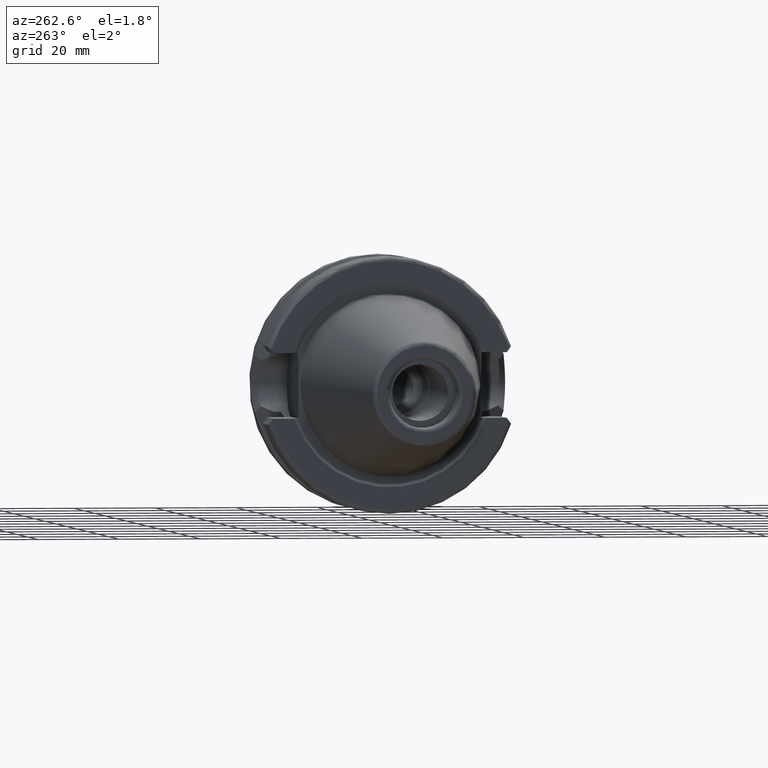
[diagram: clean part render]
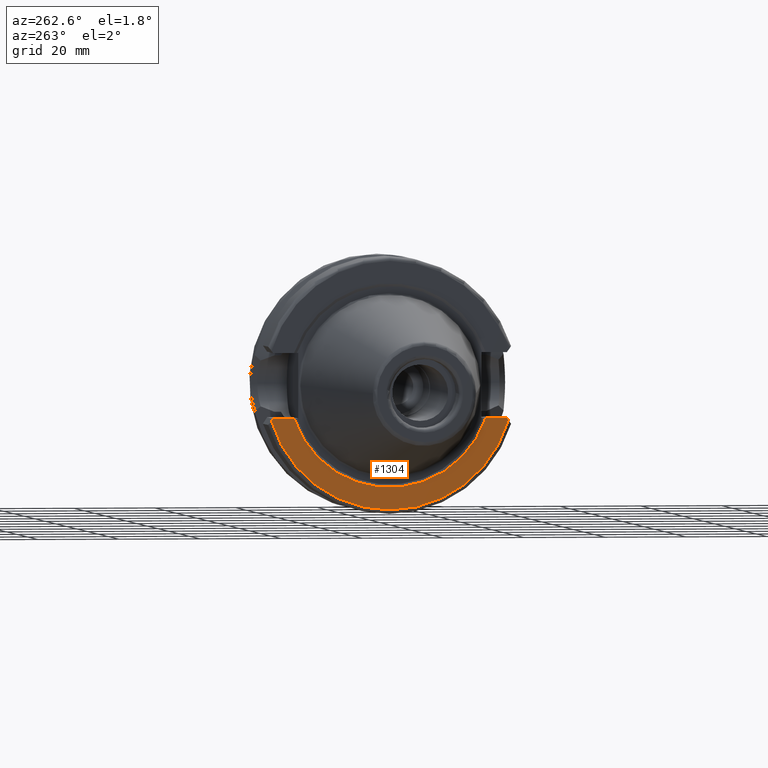
[diagram: same view with one face highlighted and labeled with its STEP entity id]
A machine part, auxiliary view. The second image highlights one B-rep face of the part: STEP entity #1304.
In plain terms, the highlighted planar face has unit normal (-1, 0, 0).
Its self-contained STEP definition (entity closure, byte-faithful):
#61=PLANE('',#1467);
#156=FACE_OUTER_BOUND('',#243,.T.);
#243=EDGE_LOOP('',(#1010,#1011,#1012,#1013,#1014,#1015));
#308=LINE('',#2271,#378);
#310=LINE('',#2293,#380);
#311=LINE('',#2297,#381);
#312=LINE('',#2298,#382);
#378=VECTOR('',#1753,10.);
#380=VECTOR('',#1767,10.);
#381=VECTOR('',#1770,10.);
#382=VECTOR('',#1771,10.);
#485=CIRCLE('',#1466,30.5);
#486=CIRCLE('',#1468,25.);
#573=VERTEX_POINT('',#2251);
#577=VERTEX_POINT('',#2269);
#580=VERTEX_POINT('',#2279);
#581=VERTEX_POINT('',#2292);
#582=VERTEX_POINT('',#2294);
#583=VERTEX_POINT('',#2296);
#732=EDGE_CURVE('',#577,#573,#308,.T.);
#736=EDGE_CURVE('',#573,#580,#485,.T.);
#738=EDGE_CURVE('',#577,#581,#310,.T.);
#739=EDGE_CURVE('',#581,#582,#486,.T.);
#740=EDGE_CURVE('',#582,#583,#311,.T.);
#741=EDGE_CURVE('',#580,#583,#312,.T.);
#1010=ORIENTED_EDGE('',*,*,#732,.F.);
#1011=ORIENTED_EDGE('',*,*,#738,.T.);
#1012=ORIENTED_EDGE('',*,*,#739,.T.);
#1013=ORIENTED_EDGE('',*,*,#740,.T.);
#1014=ORIENTED_EDGE('',*,*,#741,.F.);
#1015=ORIENTED_EDGE('',*,*,#736,.F.);
#1304=ADVANCED_FACE('',(#156),#61,.T.);
#1466=AXIS2_PLACEMENT_3D('',#2280,#1763,#1764);
#1467=AXIS2_PLACEMENT_3D('',#2291,#1765,#1766);
#1468=AXIS2_PLACEMENT_3D('',#2295,#1768,#1769);
#1753=DIRECTION('',(0.,-0.599988902555658,-0.800008322962991));
#1763=DIRECTION('center_axis',(1.,0.,0.));
#1764=DIRECTION('ref_axis',(0.,0.,-1.));
#1765=DIRECTION('center_axis',(-1.,0.,0.));
#1766=DIRECTION('ref_axis',(0.,0.,1.));
#1767=DIRECTION('',(0.,1.,0.));
#1768=DIRECTION('center_axis',(1.,0.,0.));
#1769=DIRECTION('ref_axis',(0.,0.,-1.));
#1770=DIRECTION('',(0.,1.,0.));
#1771=DIRECTION('',(0.,-0.599988902555658,0.800008322962991));
#2251=CARTESIAN_POINT('',(0.999999999999992,-29.2635810473993,-8.59609354778619));
#2269=CARTESIAN_POINT('',(0.999999999999993,-28.8540227227866,-8.05));
#2271=CARTESIAN_POINT('',(0.999999999999993,-16.5266988165472,8.38690688751911));
#2279=CARTESIAN_POINT('',(0.999999999999992,29.2635810473993,-8.59609354778619));
#2280=CARTESIAN_POINT('Origin',(0.999999999999992,0.,0.));
#2291=CARTESIAN_POINT('Origin',(0.999999999999993,30.5,0.));
#2292=CARTESIAN_POINT('',(1.,-23.6684917136686,-8.05));
#2293=CARTESIAN_POINT('',(0.999999999999993,3.95,-8.05));
#2294=CARTESIAN_POINT('',(1.,23.6684917136686,-8.05));
#2295=CARTESIAN_POINT('Origin',(1.,0.,0.));
#2296=CARTESIAN_POINT('',(0.999999999999993,28.8540227227866,-8.05));
#2297=CARTESIAN_POINT('',(0.999999999999993,26.55,-8.05));
#2298=CARTESIAN_POINT('',(0.999999999999993,27.5062926538405,-6.25297464224459));